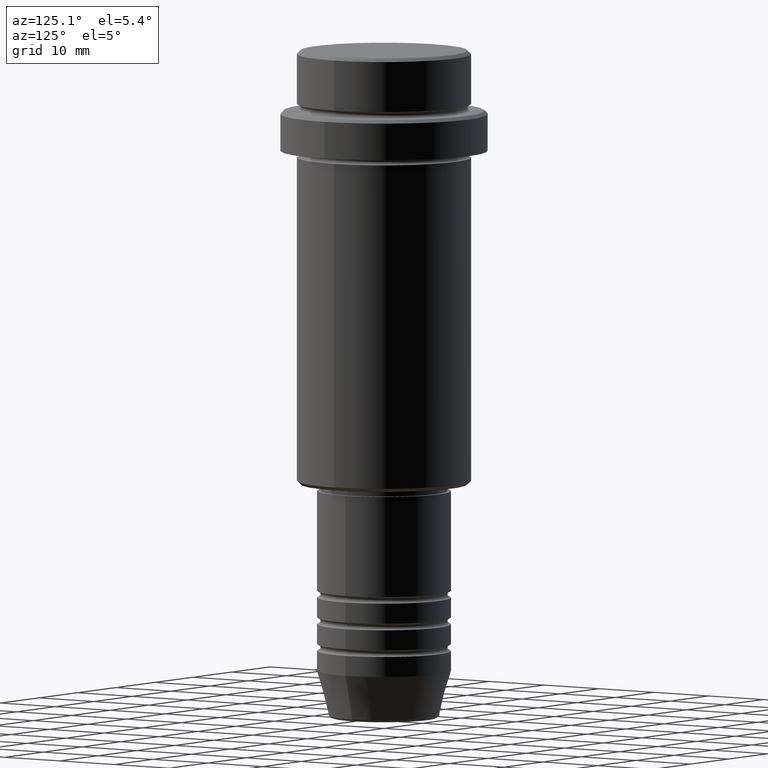
[diagram: clean part render]
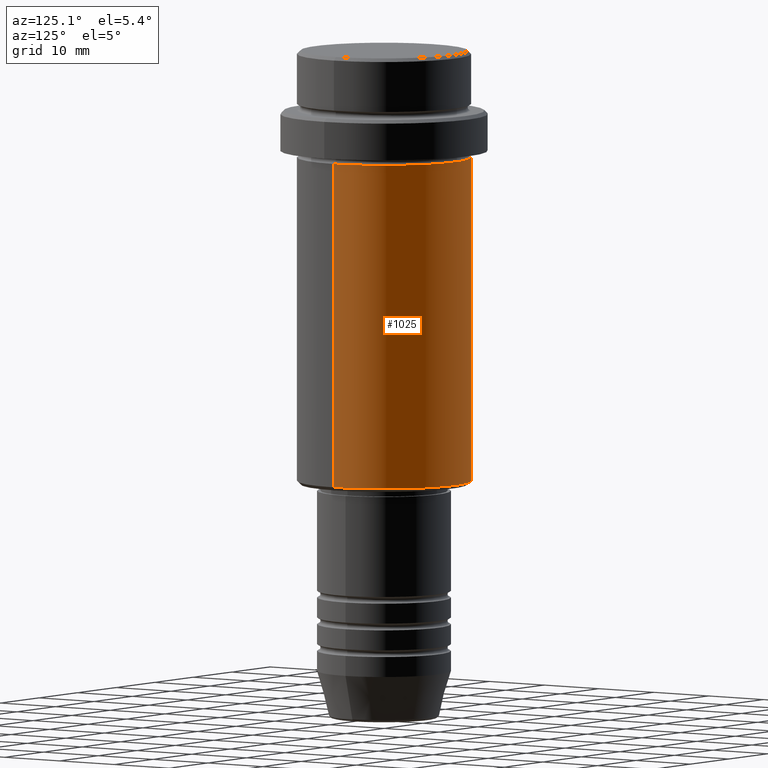
[diagram: same view with one face highlighted and labeled with its STEP entity id]
A machine part, auxiliary view. The second image highlights one B-rep face of the part: STEP entity #1025.
In plain terms, the highlighted cylindrical surface (partial cylindrical patch) has radius 13 mm, axis along (-0, -0, 1).
Its self-contained STEP definition (entity closure, byte-faithful):
#24 = VECTOR ( 'NONE', #1155, 1000.000000000000000 ) ;
#44 = CYLINDRICAL_SURFACE ( 'NONE', #958, 13.00000000000000000 ) ;
#53 = CARTESIAN_POINT ( 'NONE',  ( -13.00000000000000000, 1.592040838891559095E-15, 0.000000000000000000 ) ) ;
#69 = VERTEX_POINT ( 'NONE', #561 ) ;
#110 = DIRECTION ( 'NONE',  ( -0.000000000000000000, -0.000000000000000000, 1.000000000000000000 ) ) ;
#198 = CARTESIAN_POINT ( 'NONE',  ( 0.000000000000000000, 0.000000000000000000, -64.49999999999998579 ) ) ;
#205 = DIRECTION ( 'NONE',  ( -0.000000000000000000, -0.000000000000000000, 1.000000000000000000 ) ) ;
#291 = DIRECTION ( 'NONE',  ( -0.000000000000000000, -0.000000000000000000, 1.000000000000000000 ) ) ;
#292 = EDGE_CURVE ( 'NONE', #753, #69, #778, .T. ) ;
#334 = CARTESIAN_POINT ( 'NONE',  ( 0.000000000000000000, 0.000000000000000000, -16.00000000000000000 ) ) ;
#342 = DIRECTION ( 'NONE',  ( -0.000000000000000000, -0.000000000000000000, 1.000000000000000000 ) ) ;
#346 = AXIS2_PLACEMENT_3D ( 'NONE', #334, #205, #1071 ) ;
#381 = EDGE_CURVE ( 'NONE', #723, #631, #913, .T. ) ;
#386 = DIRECTION ( 'NONE',  ( 1.000000000000000000, 0.000000000000000000, 0.000000000000000000 ) ) ;
#561 = CARTESIAN_POINT ( 'NONE',  ( -13.00000000000000000, 1.592040838891559095E-15, -64.49999999999998579 ) ) ;
#605 = FACE_OUTER_BOUND ( 'NONE', #1101, .T. ) ;
#631 = VERTEX_POINT ( 'NONE', #1273 ) ;
#634 = CARTESIAN_POINT ( 'NONE',  ( 13.00000000000000000, 0.000000000000000000, -64.49999999999998579 ) ) ;
#683 = AXIS2_PLACEMENT_3D ( 'NONE', #198, #110, #962 ) ;
#723 = VERTEX_POINT ( 'NONE', #1410 ) ;
#736 = ORIENTED_EDGE ( 'NONE', *, *, #381, .F. ) ;
#753 = VERTEX_POINT ( 'NONE', #634 ) ;
#762 = ORIENTED_EDGE ( 'NONE', *, *, #292, .T. ) ;
#778 = CIRCLE ( 'NONE', #683, 13.00000000000000000 ) ;
#863 = VECTOR ( 'NONE', #342, 1000.000000000000000 ) ;
#913 = CIRCLE ( 'NONE', #346, 13.00000000000000000 ) ;
#944 = ORIENTED_EDGE ( 'NONE', *, *, #1405, .F. ) ;
#958 = AXIS2_PLACEMENT_3D ( 'NONE', #1271, #291, #386 ) ;
#962 = DIRECTION ( 'NONE',  ( -1.000000000000000000, 0.000000000000000000, 0.000000000000000000 ) ) ;
#1018 = EDGE_CURVE ( 'NONE', #69, #631, #1044, .T. ) ;
#1025 = ADVANCED_FACE ( 'NONE', ( #605 ), #44, .T. ) ;
#1044 = LINE ( 'NONE', #53, #24 ) ;
#1071 = DIRECTION ( 'NONE',  ( 1.000000000000000000, 0.000000000000000000, 0.000000000000000000 ) ) ;
#1099 = CARTESIAN_POINT ( 'NONE',  ( 13.00000000000000000, 0.000000000000000000, 0.000000000000000000 ) ) ;
#1101 = EDGE_LOOP ( 'NONE', ( #762, #1110, #736, #944 ) ) ;
#1110 = ORIENTED_EDGE ( 'NONE', *, *, #1018, .T. ) ;
#1155 = DIRECTION ( 'NONE',  ( -0.000000000000000000, -0.000000000000000000, 1.000000000000000000 ) ) ;
#1271 = CARTESIAN_POINT ( 'NONE',  ( 0.000000000000000000, 0.000000000000000000, 0.000000000000000000 ) ) ;
#1273 = CARTESIAN_POINT ( 'NONE',  ( -13.00000000000000000, 1.592040838891559095E-15, -16.00000000000000000 ) ) ;
#1326 = LINE ( 'NONE', #1099, #863 ) ;
#1405 = EDGE_CURVE ( 'NONE', #753, #723, #1326, .T. ) ;
#1410 = CARTESIAN_POINT ( 'NONE',  ( 13.00000000000000000, 0.000000000000000000, -16.00000000000000000 ) ) ;